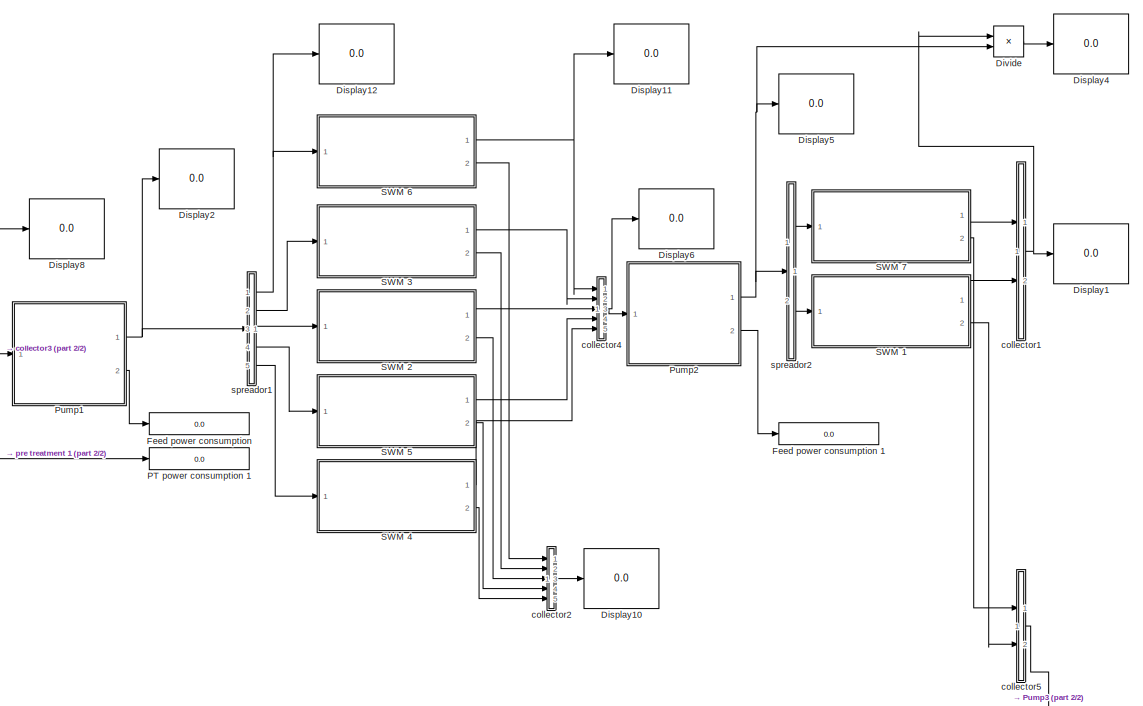
[diagram: root canvas - part 1/2, right side, full height]
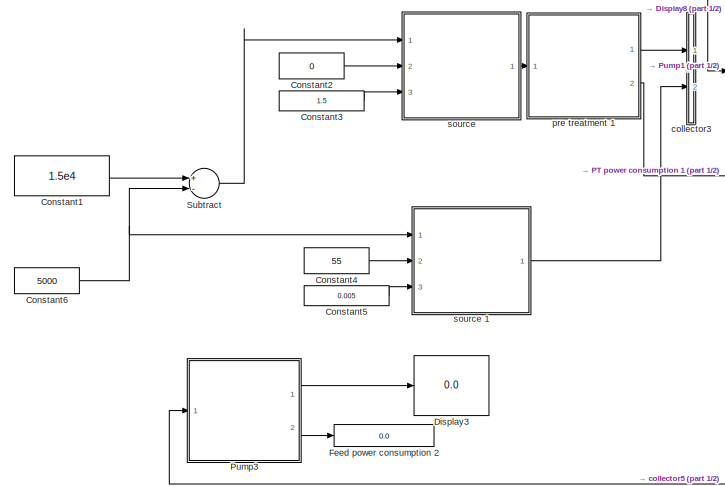
[diagram: root canvas - part 2/2, bottom left region]
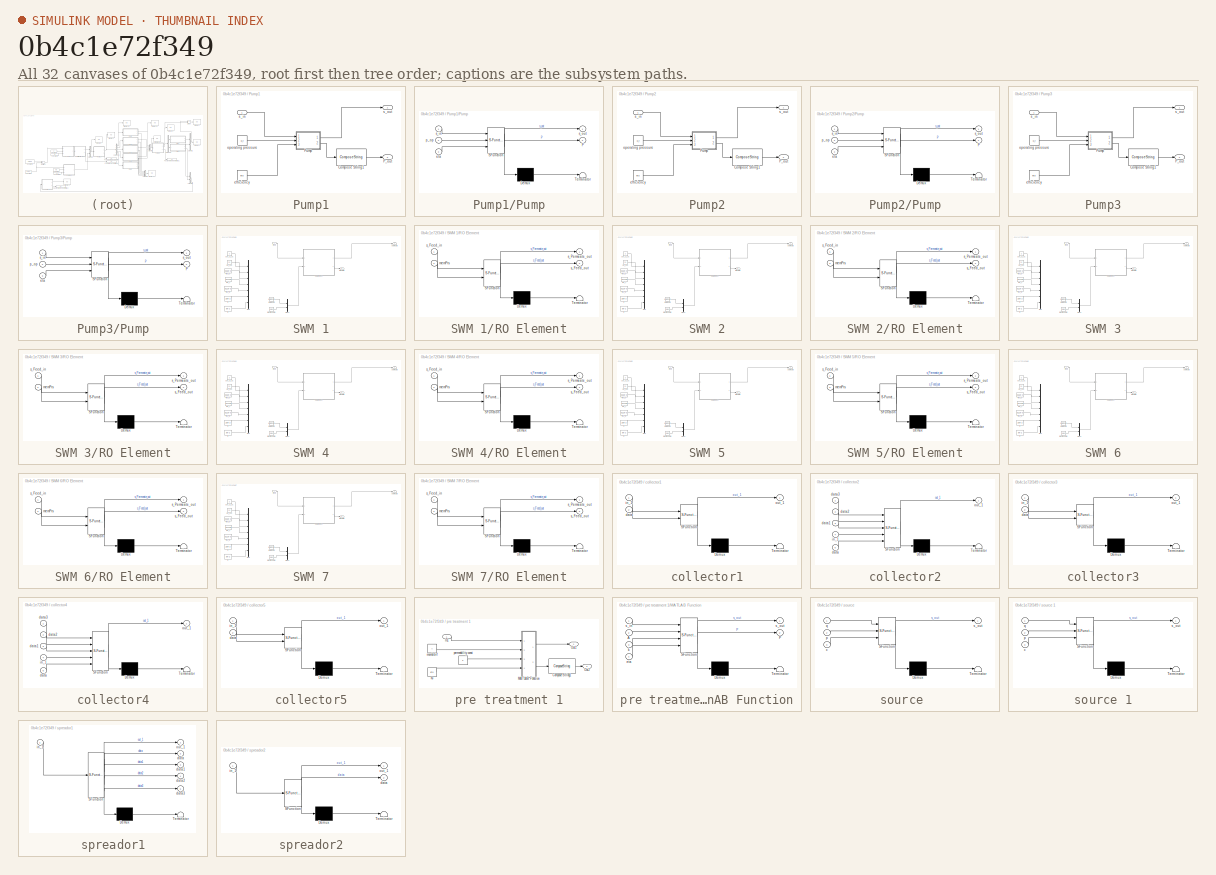
[diagram: thumbnail index - all 32 canvases of the model, root first then tree order]
MODEL slx_0b4c1e72f349
KIND model
CONFIG AbsTol = auto
CONFIG EnableMultiTasking = off
CONFIG FixedStep = auto
CONFIG MaxStep = auto
CONFIG MinStep = auto
CONFIG RelTol = 1e-3
CONFIG SampleTimeConstraint = Unconstrained
CONFIG Solver = VariableStepAuto
CONFIG SolverName = VariableStepAuto
CONFIG StartTime = 0.0
CONFIG StopTime = 10.0
BLOCK [Constant] Constant1
  Value = 1.5e4
BLOCK [Constant] Constant2
  Value = 0
BLOCK [Constant] Constant3
  Value = 1.5
BLOCK [Constant] Constant4
  Value = 55
BLOCK [Constant] Constant5
  Value = 0.005
BLOCK [Constant] Constant6
  Value = 5000
BLOCK [Display] Display1
  Decimation = 1
  Ports = [1]
BLOCK [Display] Display10
  Decimation = 1
  Ports = [1]
BLOCK [Display] Display11
  Decimation = 1
  Ports = [1]
BLOCK [Display] Display12
  Decimation = 1
  Ports = [1]
BLOCK [Display] Display2
  Decimation = 1
  Ports = [1]
BLOCK [Display] Display3
  Decimation = 1
  Ports = [1]
BLOCK [Display] Display4
  Decimation = 1
  Ports = [1]
BLOCK [Display] Display5
  Decimation = 1
  Ports = [1]
BLOCK [Display] Display6
  Decimation = 1
  Ports = [1]
BLOCK [Display] Display8
  Decimation = 1
  Ports = [1]
BLOCK [Product] Divide
  InputSameDT = off
  Inputs = */
  OutDataTypeStr = Inherit: Inherit via internal rule
  Ports = [2, 1]
  RndMeth = Floor
  SaturateOnIntegerOverflow = off
BLOCK [Display] Feed power consumption 
  Decimation = 1
  Ports = [1]
BLOCK [Display] Feed power consumption 1
  Decimation = 1
  Ports = [1]
BLOCK [Display] Feed power consumption 2
  Decimation = 1
  Ports = [1]
BLOCK [Display] PT power consumption 1
  Decimation = 1
  Ports = [1]
BLOCK [SubSystem] Pump1
  Ports = [1, 2]
  RequestExecContextInheritance = off
BLOCK [ComposeString] Pump1/Compose String1
  Format = 'P = %.3f kW'
  Ports = [1, 1]
BLOCK [Outport] Pump1/P_out
  IconDisplay = Port number
  Port = 2
BLOCK [SubSystem] Pump1/Pump
  ErrorFcn = Stateflow.Translate.translate
  PermitHierarchicalResolution = ExplicitOnly
  Ports = [3, 2]
  RequestExecContextInheritance = off
  SFBlockType = MATLAB Function
  TreatAsAtomicUnit = on
BLOCK [Demux] Pump1/Pump/ Demux 
  Outputs = 1
  Ports = [1, 1]
BLOCK [S-Function] Pump1/Pump/ SFunction 
  EnableBusSupport = on
  FunctionName = sf_sfun
  PortCounts = [3 3]
  Ports = [3, 3]
  SFcnIsStateOwnerBlock = off
  SFunctionDeploymentMode = off
  Tag = Stateflow S-Function ps_5_2 3
BLOCK [Terminator] Pump1/Pump/ Terminator 
BLOCK [Outport] Pump1/Pump/P
  IconDisplay = Port number
  Port = 2
BLOCK [Inport] Pump1/Pump/eta
  IconDisplay = Port number
  Port = 3
BLOCK [Inport] Pump1/Pump/p_op
  IconDisplay = Port number
  Port = 2
BLOCK [Inport] Pump1/Pump/s_in
  IconDisplay = Port number
BLOCK [Outport] Pump1/Pump/s_out
  IconDisplay = Port number
BLOCK [Constant] Pump1/efficiency
  Value = eta
BLOCK [Constant] Pump1/operating pressure 
  Value = p_f
BLOCK [Inport] Pump1/s_in 
  IconDisplay = Port number
BLOCK [Outport] Pump1/s_out
  IconDisplay = Port number
BLOCK [SubSystem] Pump2
  Ports = [1, 2]
  RequestExecContextInheritance = off
BLOCK [ComposeString] Pump2/Compose String1
  Format = 'P = %.3f kW'
  Ports = [1, 1]
BLOCK [Outport] Pump2/P_out
  IconDisplay = Port number
  Port = 2
BLOCK [SubSystem] Pump2/Pump
  ErrorFcn = Stateflow.Translate.translate
  PermitHierarchicalResolution = ExplicitOnly
  Ports = [3, 2]
  RequestExecContextInheritance = off
  SFBlockType = MATLAB Function
  TreatAsAtomicUnit = on
BLOCK [Demux] Pump2/Pump/ Demux 
  Outputs = 1
  Ports = [1, 1]
BLOCK [S-Function] Pump2/Pump/ SFunction 
  EnableBusSupport = on
  FunctionName = sf_sfun
  PortCounts = [3 3]
  Ports = [3, 3]
  SFcnIsStateOwnerBlock = off
  SFunctionDeploymentMode = off
  Tag = Stateflow S-Function ps_5_2 2
BLOCK [Terminator] Pump2/Pump/ Terminator 
BLOCK [Outport] Pump2/Pump/P
  IconDisplay = Port number
  Port = 2
BLOCK [Inport] Pump2/Pump/eta
  IconDisplay = Port number
  Port = 3
BLOCK [Inport] Pump2/Pump/p_op
  IconDisplay = Port number
  Port = 2
BLOCK [Inport] Pump2/Pump/s_in
  IconDisplay = Port number
BLOCK [Outport] Pump2/Pump/s_out
  IconDisplay = Port number
BLOCK [Constant] Pump2/efficiency
  Value = eta
BLOCK [Constant] Pump2/operating pressure 
  Value = p_f
BLOCK [Inport] Pump2/s_in 
  IconDisplay = Port number
BLOCK [Outport] Pump2/s_out
  IconDisplay = Port number
BLOCK [SubSystem] Pump3
  Ports = [1, 2]
  RequestExecContextInheritance = off
BLOCK [ComposeString] Pump3/Compose String1
  Format = 'P = %.3f kW'
  Ports = [1, 1]
BLOCK [Outport] Pump3/P_out
  IconDisplay = Port number
  Port = 2
BLOCK [SubSystem] Pump3/Pump
  ErrorFcn = Stateflow.Translate.translate
  PermitHierarchicalResolution = ExplicitOnly
  Ports = [3, 2]
  RequestExecContextInheritance = off
  SFBlockType = MATLAB Function
  TreatAsAtomicUnit = on
BLOCK [Demux] Pump3/Pump/ Demux 
  Outputs = 1
  Ports = [1, 1]
BLOCK [S-Function] Pump3/Pump/ SFunction 
  EnableBusSupport = on
  FunctionName = sf_sfun
  PortCounts = [3 3]
  Ports = [3, 3]
  SFcnIsStateOwnerBlock = off
  SFunctionDeploymentMode = off
  Tag = Stateflow S-Function ps_5_2 7
BLOCK [Terminator] Pump3/Pump/ Terminator 
BLOCK [Outport] Pump3/Pump/P
  IconDisplay = Port number
  Port = 2
BLOCK [Inport] Pump3/Pump/eta
  IconDisplay = Port number
  Port = 3
BLOCK [Inport] Pump3/Pump/p_op
  IconDisplay = Port number
  Port = 2
BLOCK [Inport] Pump3/Pump/s_in
  IconDisplay = Port number
BLOCK [Outport] Pump3/Pump/s_out
  IconDisplay = Port number
BLOCK [Constant] Pump3/efficiency
  Value = eta
BLOCK [Constant] Pump3/operating pressure 
  Value = p_f
BLOCK [Inport] Pump3/s_in 
  IconDisplay = Port number
BLOCK [Outport] Pump3/s_out
  IconDisplay = Port number
BLOCK [SubSystem] SWM 1
  Ports = [1, 2]
  RequestExecContextInheritance = off
BLOCK [Mux] SWM 1/Mux
  Commented = on
  DisplayOption = bar
  Inputs = 7
  Ports = [7, 1]
BLOCK [Mux] SWM 1/Mux1
  DisplayOption = bar
  Inputs = 2
  Ports = [2, 1]
BLOCK [SubSystem] SWM 1/RO Element
  ErrorFcn = Stateflow.Translate.translate
  PermitHierarchicalResolution = ExplicitOnly
  Ports = [2, 2]
  RequestExecContextInheritance = off
  SFBlockType = MATLAB Function
  TreatAsAtomicUnit = on
BLOCK [Demux] SWM 1/RO Element/ Demux 
  Outputs = 1
  Ports = [1, 1]
BLOCK [S-Function] SWM 1/RO Element/ SFunction 
  EnableBusSupport = on
  FunctionName = sf_sfun
  PortCounts = [2 3]
  Ports = [2, 3]
  SFcnIsStateOwnerBlock = off
  SFunctionDeploymentMode = off
  Tag = Stateflow S-Function ps_5_2 1
BLOCK [Terminator] SWM 1/RO Element/ Terminator 
BLOCK [Inport] SWM 1/RO Element/memPrs
  IconDisplay = Port number
  Port = 2
BLOCK [Inport] SWM 1/RO Element/s_Feed_in
  IconDisplay = Port number
BLOCK [Outport] SWM 1/RO Element/s_Feed_out
  IconDisplay = Port number
  Port = 2
BLOCK [Outport] SWM 1/RO Element/s_Permeate_out
  IconDisplay = Port number
BLOCK [Inport] SWM 1/feed
  IconDisplay = Port number
BLOCK [Constant] SWM 1/np_sht
  Commented = on
  Value = 20
BLOCK [Outport] SWM 1/permeate
  IconDisplay = Port number
BLOCK [Constant] SWM 1/r1
  Commented = on
  Value = 2.5e-2
BLOCK [Constant] SWM 1/r2
  Commented = on
  Value = 9e-2
BLOCK [Constant] SWM 1/rejectionRate
  Value = Value
BLOCK [Outport] SWM 1/retentate
  IconDisplay = Port number
  Port = 2
BLOCK [Constant] SWM 1/spc_d_uc
  Commented = on
  Value = 3
BLOCK [Constant] SWM 1/thk_f
  Commented = on
  Value = 0.711e-3
BLOCK [Constant] SWM 1/thk_m
  Commented = on
  Value = 0.11e-3
BLOCK [Constant] SWM 1/thk_p
  Commented = on
  Value = 0.25e-3
BLOCK [Constant] SWM 1/waterPerm
  Value = waterPerm
BLOCK [SubSystem] SWM 2
  Ports = [1, 2]
  RequestExecContextInheritance = off
BLOCK [Mux] SWM 2/Mux
  Commented = on
  DisplayOption = bar
  Inputs = 7
  Ports = [7, 1]
BLOCK [Mux] SWM 2/Mux1
  DisplayOption = bar
  Inputs = 2
  Ports = [2, 1]
BLOCK [SubSystem] SWM 2/RO Element
  ErrorFcn = Stateflow.Translate.translate
  PermitHierarchicalResolution = ExplicitOnly
  Ports = [2, 2]
  RequestExecContextInheritance = off
  SFBlockType = MATLAB Function
  TreatAsAtomicUnit = on
BLOCK [Demux] SWM 2/RO Element/ Demux 
  Outputs = 1
  Ports = [1, 1]
BLOCK [S-Function] SWM 2/RO Element/ SFunction 
  EnableBusSupport = on
  FunctionName = sf_sfun
  PortCounts = [2 3]
  Ports = [2, 3]
  SFcnIsStateOwnerBlock = off
  SFunctionDeploymentMode = off
  Tag = Stateflow S-Function ps_5_2 8
BLOCK [Terminator] SWM 2/RO Element/ Terminator 
BLOCK [Inport] SWM 2/RO Element/memPrs
  IconDisplay = Port number
  Port = 2
BLOCK [Inport] SWM 2/RO Element/s_Feed_in
  IconDisplay = Port number
BLOCK [Outport] SWM 2/RO Element/s_Feed_out
  IconDisplay = Port number
  Port = 2
BLOCK [Outport] SWM 2/RO Element/s_Permeate_out
  IconDisplay = Port number
BLOCK [Inport] SWM 2/feed
  IconDisplay = Port number
BLOCK [Constant] SWM 2/np_sht
  Commented = on
  Value = 20
BLOCK [Outport] SWM 2/permeate
  IconDisplay = Port number
BLOCK [Constant] SWM 2/r1
  Commented = on
  Value = 2.5e-2
BLOCK [Constant] SWM 2/r2
  Commented = on
  Value = 9e-2
BLOCK [Constant] SWM 2/rejectionRate
  Value = Value
BLOCK [Outport] SWM 2/retentate
  IconDisplay = Port number
  Port = 2
BLOCK [Constant] SWM 2/spc_d_uc
  Commented = on
  Value = 3
BLOCK [Constant] SWM 2/thk_f
  Commented = on
  Value = 0.711e-3
BLOCK [Constant] SWM 2/thk_m
  Commented = on
  Value = 0.11e-3
BLOCK [Constant] SWM 2/thk_p
  Commented = on
  Value = 0.25e-3
BLOCK [Constant] SWM 2/waterPerm
  Value = waterPerm
BLOCK [SubSystem] SWM 3
  Ports = [1, 2]
  RequestExecContextInheritance = off
BLOCK [Mux] SWM 3/Mux
  Commented = on
  DisplayOption = bar
  Inputs = 7
  Ports = [7, 1]
BLOCK [Mux] SWM 3/Mux1
  DisplayOption = bar
  Inputs = 2
  Ports = [2, 1]
BLOCK [SubSystem] SWM 3/RO Element
  ErrorFcn = Stateflow.Translate.translate
  PermitHierarchicalResolution = ExplicitOnly
  Ports = [2, 2]
  RequestExecContextInheritance = off
  SFBlockType = MATLAB Function
  TreatAsAtomicUnit = on
BLOCK [Demux] SWM 3/RO Element/ Demux 
  Outputs = 1
  Ports = [1, 1]
BLOCK [S-Function] SWM 3/RO Element/ SFunction 
  EnableBusSupport = on
  FunctionName = sf_sfun
  PortCounts = [2 3]
  Ports = [2, 3]
  SFcnIsStateOwnerBlock = off
  SFunctionDeploymentMode = off
  Tag = Stateflow S-Function ps_5_2 4
BLOCK [Terminator] SWM 3/RO Element/ Terminator 
BLOCK [Inport] SWM 3/RO Element/memPrs
  IconDisplay = Port number
  Port = 2
BLOCK [Inport] SWM 3/RO Element/s_Feed_in
  IconDisplay = Port number
BLOCK [Outport] SWM 3/RO Element/s_Feed_out
  IconDisplay = Port number
  Port = 2
BLOCK [Outport] SWM 3/RO Element/s_Permeate_out
  IconDisplay = Port number
BLOCK [Inport] SWM 3/feed
  IconDisplay = Port number
BLOCK [Constant] SWM 3/np_sht
  Commented = on
  Value = 20
BLOCK [Outport] SWM 3/permeate
  IconDisplay = Port number
BLOCK [Constant] SWM 3/r1
  Commented = on
  Value = 2.5e-2
BLOCK [Constant] SWM 3/r2
  Commented = on
  Value = 9e-2
BLOCK [Constant] SWM 3/rejectionRate
  Value = Value
BLOCK [Outport] SWM 3/retentate
  IconDisplay = Port number
  Port = 2
BLOCK [Constant] SWM 3/spc_d_uc
  Commented = on
  Value = 3
BLOCK [Constant] SWM 3/thk_f
  Commented = on
  Value = 0.711e-3
BLOCK [Constant] SWM 3/thk_m
  Commented = on
  Value = 0.11e-3
BLOCK [Constant] SWM 3/thk_p
  Commented = on
  Value = 0.25e-3
BLOCK [Constant] SWM 3/waterPerm
  Value = waterPerm
BLOCK [SubSystem] SWM 4
  Ports = [1, 2]
  RequestExecContextInheritance = off
BLOCK [Mux] SWM 4/Mux
  Commented = on
  DisplayOption = bar
  Inputs = 7
  Ports = [7, 1]
BLOCK [Mux] SWM 4/Mux1
  DisplayOption = bar
  Inputs = 2
  Ports = [2, 1]
BLOCK [SubSystem] SWM 4/RO Element
  ErrorFcn = Stateflow.Translate.translate
  PermitHierarchicalResolution = ExplicitOnly
  Ports = [2, 2]
  RequestExecContextInheritance = off
  SFBlockType = MATLAB Function
  TreatAsAtomicUnit = on
BLOCK [Demux] SWM 4/RO Element/ Demux 
  Outputs = 1
  Ports = [1, 1]
BLOCK [S-Function] SWM 4/RO Element/ SFunction 
  EnableBusSupport = on
  FunctionName = sf_sfun
  PortCounts = [2 3]
  Ports = [2, 3]
  SFcnIsStateOwnerBlock = off
  SFunctionDeploymentMode = off
  Tag = Stateflow S-Function ps_5_2 10
BLOCK [Terminator] SWM 4/RO Element/ Terminator 
BLOCK [Inport] SWM 4/RO Element/memPrs
  IconDisplay = Port number
  Port = 2
BLOCK [Inport] SWM 4/RO Element/s_Feed_in
  IconDisplay = Port number
BLOCK [Outport] SWM 4/RO Element/s_Feed_out
  IconDisplay = Port number
  Port = 2
BLOCK [Outport] SWM 4/RO Element/s_Permeate_out
  IconDisplay = Port number
BLOCK [Inport] SWM 4/feed
  IconDisplay = Port number
BLOCK [Constant] SWM 4/np_sht
  Commented = on
  Value = 20
BLOCK [Outport] SWM 4/permeate
  IconDisplay = Port number
BLOCK [Constant] SWM 4/r1
  Commented = on
  Value = 2.5e-2
BLOCK [Constant] SWM 4/r2
  Commented = on
  Value = 9e-2
BLOCK [Constant] SWM 4/rejectionRate
  Value = Value
BLOCK [Outport] SWM 4/retentate
  IconDisplay = Port number
  Port = 2
BLOCK [Constant] SWM 4/spc_d_uc
  Commented = on
  Value = 3
BLOCK [Constant] SWM 4/thk_f
  Commented = on
  Value = 0.711e-3
BLOCK [Constant] SWM 4/thk_m
  Commented = on
  Value = 0.11e-3
BLOCK [Constant] SWM 4/thk_p
  Commented = on
  Value = 0.25e-3
BLOCK [Constant] SWM 4/waterPerm
  Value = waterPerm
BLOCK [SubSystem] SWM 5
  Ports = [1, 2]
  RequestExecContextInheritance = off
BLOCK [Mux] SWM 5/Mux
  Commented = on
  DisplayOption = bar
  Inputs = 7
  Ports = [7, 1]
BLOCK [Mux] SWM 5/Mux1
  DisplayOption = bar
  Inputs = 2
  Ports = [2, 1]
BLOCK [SubSystem] SWM 5/RO Element
  ErrorFcn = Stateflow.Translate.translate
  PermitHierarchicalResolution = ExplicitOnly
  Ports = [2, 2]
  RequestExecContextInheritance = off
  SFBlockType = MATLAB Function
  TreatAsAtomicUnit = on
BLOCK [Demux] SWM 5/RO Element/ Demux 
  Outputs = 1
  Ports = [1, 1]
BLOCK [S-Function] SWM 5/RO Element/ SFunction 
  EnableBusSupport = on
  FunctionName = sf_sfun
  PortCounts = [2 3]
  Ports = [2, 3]
  SFcnIsStateOwnerBlock = off
  SFunctionDeploymentMode = off
  Tag = Stateflow S-Function ps_5_2 11
BLOCK [Terminator] SWM 5/RO Element/ Terminator 
BLOCK [Inport] SWM 5/RO Element/memPrs
  IconDisplay = Port number
  Port = 2
BLOCK [Inport] SWM 5/RO Element/s_Feed_in
  IconDisplay = Port number
BLOCK [Outport] SWM 5/RO Element/s_Feed_out
  IconDisplay = Port number
  Port = 2
BLOCK [Outport] SWM 5/RO Element/s_Permeate_out
  IconDisplay = Port number
BLOCK [Inport] SWM 5/feed
  IconDisplay = Port number
BLOCK [Constant] SWM 5/np_sht
  Commented = on
  Value = 20
BLOCK [Outport] SWM 5/permeate
  IconDisplay = Port number
BLOCK [Constant] SWM 5/r1
  Commented = on
  Value = 2.5e-2
BLOCK [Constant] SWM 5/r2
  Commented = on
  Value = 9e-2
BLOCK [Constant] SWM 5/rejectionRate
  Value = Value
BLOCK [Outport] SWM 5/retentate
  IconDisplay = Port number
  Port = 2
BLOCK [Constant] SWM 5/spc_d_uc
  Commented = on
  Value = 3
BLOCK [Constant] SWM 5/thk_f
  Commented = on
  Value = 0.711e-3
BLOCK [Constant] SWM 5/thk_m
  Commented = on
  Value = 0.11e-3
BLOCK [Constant] SWM 5/thk_p
  Commented = on
  Value = 0.25e-3
BLOCK [Constant] SWM 5/waterPerm
  Value = waterPerm
BLOCK [SubSystem] SWM 6
  Ports = [1, 2]
  RequestExecContextInheritance = off
BLOCK [Mux] SWM 6/Mux
  Commented = on
  DisplayOption = bar
  Inputs = 7
  Ports = [7, 1]
BLOCK [Mux] SWM 6/Mux1
  DisplayOption = bar
  Inputs = 2
  Ports = [2, 1]
BLOCK [SubSystem] SWM 6/RO Element
  ErrorFcn = Stateflow.Translate.translate
  PermitHierarchicalResolution = ExplicitOnly
  Ports = [2, 2]
  RequestExecContextInheritance = off
  SFBlockType = MATLAB Function
  TreatAsAtomicUnit = on
BLOCK [Demux] SWM 6/RO Element/ Demux 
  Outputs = 1
  Ports = [1, 1]
BLOCK [S-Function] SWM 6/RO Element/ SFunction 
  EnableBusSupport = on
  FunctionName = sf_sfun
  PortCounts = [2 3]
  Ports = [2, 3]
  SFcnIsStateOwnerBlock = off
  SFunctionDeploymentMode = off
  Tag = Stateflow S-Function ps_5_2 13
BLOCK [Terminator] SWM 6/RO Element/ Terminator 
BLOCK [Inport] SWM 6/RO Element/memPrs
  IconDisplay = Port number
  Port = 2
BLOCK [Inport] SWM 6/RO Element/s_Feed_in
  IconDisplay = Port number
BLOCK [Outport] SWM 6/RO Element/s_Feed_out
  IconDisplay = Port number
  Port = 2
BLOCK [Outport] SWM 6/RO Element/s_Permeate_out
  IconDisplay = Port number
BLOCK [Inport] SWM 6/feed
  IconDisplay = Port number
BLOCK [Constant] SWM 6/np_sht
  Commented = on
  Value = 20
BLOCK [Outport] SWM 6/permeate
  IconDisplay = Port number
BLOCK [Constant] SWM 6/r1
  Commented = on
  Value = 2.5e-2
BLOCK [Constant] SWM 6/r2
  Commented = on
  Value = 9e-2
BLOCK [Constant] SWM 6/rejectionRate
  Value = Value
BLOCK [Outport] SWM 6/retentate
  IconDisplay = Port number
  Port = 2
BLOCK [Constant] SWM 6/spc_d_uc
  Commented = on
  Value = 3
BLOCK [Constant] SWM 6/thk_f
  Commented = on
  Value = 0.711e-3
BLOCK [Constant] SWM 6/thk_m
  Commented = on
  Value = 0.11e-3
BLOCK [Constant] SWM 6/thk_p
  Commented = on
  Value = 0.25e-3
BLOCK [Constant] SWM 6/waterPerm
  Value = waterPerm
BLOCK [SubSystem] SWM 7
  Ports = [1, 2]
  RequestExecContextInheritance = off
BLOCK [Mux] SWM 7/Mux
  Commented = on
  DisplayOption = bar
  Inputs = 7
  Ports = [7, 1]
BLOCK [Mux] SWM 7/Mux1
  DisplayOption = bar
  Inputs = 2
  Ports = [2, 1]
BLOCK [SubSystem] SWM 7/RO Element
  ErrorFcn = Stateflow.Translate.translate
  PermitHierarchicalResolution = ExplicitOnly
  Ports = [2, 2]
  RequestExecContextInheritance = off
  SFBlockType = MATLAB Function
  TreatAsAtomicUnit = on
BLOCK [Demux] SWM 7/RO Element/ Demux 
  Outputs = 1
  Ports = [1, 1]
BLOCK [S-Function] SWM 7/RO Element/ SFunction 
  EnableBusSupport = on
  FunctionName = sf_sfun
  PortCounts = [2 3]
  Ports = [2, 3]
  SFcnIsStateOwnerBlock = off
  SFunctionDeploymentMode = off
  Tag = Stateflow S-Function ps_5_2 12
BLOCK [Terminator] SWM 7/RO Element/ Terminator 
BLOCK [Inport] SWM 7/RO Element/memPrs
  IconDisplay = Port number
  Port = 2
BLOCK [Inport] SWM 7/RO Element/s_Feed_in
  IconDisplay = Port number
BLOCK [Outport] SWM 7/RO Element/s_Feed_out
  IconDisplay = Port number
  Port = 2
BLOCK [Outport] SWM 7/RO Element/s_Permeate_out
  IconDisplay = Port number
BLOCK [Inport] SWM 7/feed
  IconDisplay = Port number
BLOCK [Constant] SWM 7/np_sht
  Commented = on
  Value = 20
BLOCK [Outport] SWM 7/permeate
  IconDisplay = Port number
BLOCK [Constant] SWM 7/r1
  Commented = on
  Value = 2.5e-2
BLOCK [Constant] SWM 7/r2
  Commented = on
  Value = 9e-2
BLOCK [Constant] SWM 7/rejectionRate
  Value = Value
BLOCK [Outport] SWM 7/retentate
  IconDisplay = Port number
  Port = 2
BLOCK [Constant] SWM 7/spc_d_uc
  Commented = on
  Value = 3
BLOCK [Constant] SWM 7/thk_f
  Commented = on
  Value = 0.711e-3
BLOCK [Constant] SWM 7/thk_m
  Commented = on
  Value = 0.11e-3
BLOCK [Constant] SWM 7/thk_p
  Commented = on
  Value = 0.25e-3
BLOCK [Constant] SWM 7/waterPerm
  Value = waterPerm
BLOCK [Sum] Subtract
  InputSameDT = off
  Inputs = +-
  OutDataTypeStr = Inherit: Inherit via internal rule
  Ports = [2, 1]
  SaturateOnIntegerOverflow = off
BLOCK [SubSystem] collector1
  ErrorFcn = Stateflow.Translate.translate
  PermitHierarchicalResolution = ExplicitOnly
  Ports = [2, 1]
  RequestExecContextInheritance = off
  SFBlockType = MATLAB Function
  TreatAsAtomicUnit = on
BLOCK [Demux] collector1/ Demux 
  Outputs = 1
  Ports = [1, 1]
BLOCK [S-Function] collector1/ SFunction 
  EnableBusSupport = on
  FunctionName = sf_sfun
  PortCounts = [2 2]
  Ports = [2, 2]
  SFcnIsStateOwnerBlock = off
  SFunctionDeploymentMode = off
  Tag = Stateflow S-Function ps_5_2 16
BLOCK [Terminator] collector1/ Terminator 
BLOCK [Inport] collector1/data
  IconDisplay = Port number
  Port = 2
BLOCK [Inport] collector1/in_1
  IconDisplay = Port number
BLOCK [Outport] collector1/out_1
  IconDisplay = Port number
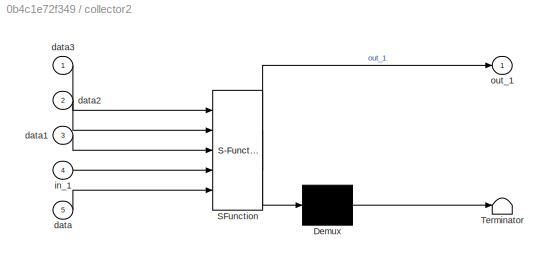
BLOCK [SubSystem] collector2
  ErrorFcn = Stateflow.Translate.translate
  PermitHierarchicalResolution = ExplicitOnly
  Ports = [5, 1]
  RequestExecContextInheritance = off
  SFBlockType = MATLAB Function
  TreatAsAtomicUnit = on
BLOCK [Demux] collector2/ Demux 
  Outputs = 1
  Ports = [1, 1]
BLOCK [S-Function] collector2/ SFunction 
  EnableBusSupport = on
  FunctionName = sf_sfun
  PortCounts = [5 2]
  Ports = [5, 2]
  SFcnIsStateOwnerBlock = off
  SFunctionDeploymentMode = off
  Tag = Stateflow S-Function ps_5_2 14
BLOCK [Terminator] collector2/ Terminator 
BLOCK [Inport] collector2/data
  IconDisplay = Port number
  Port = 5
BLOCK [Inport] collector2/data1
  IconDisplay = Port number
  Port = 3
BLOCK [Inport] collector2/data2
  IconDisplay = Port number
  Port = 2
BLOCK [Inport] collector2/data3
  IconDisplay = Port number
BLOCK [Inport] collector2/in_1
  IconDisplay = Port number
  Port = 4
BLOCK [Outport] collector2/out_1
  IconDisplay = Port number
BLOCK [SubSystem] collector3
  ErrorFcn = Stateflow.Translate.translate
  PermitHierarchicalResolution = ExplicitOnly
  Ports = [2, 1]
  RequestExecContextInheritance = off
  SFBlockType = MATLAB Function
  TreatAsAtomicUnit = on
BLOCK [Demux] collector3/ Demux 
  Outputs = 1
  Ports = [1, 1]
BLOCK [S-Function] collector3/ SFunction 
  EnableBusSupport = on
  FunctionName = sf_sfun
  PortCounts = [2 2]
  Ports = [2, 2]
  SFcnIsStateOwnerBlock = off
  SFunctionDeploymentMode = off
  Tag = Stateflow S-Function ps_5_2 6
BLOCK [Terminator] collector3/ Terminator 
BLOCK [Inport] collector3/data
  IconDisplay = Port number
  Port = 2
BLOCK [Inport] collector3/in_1
  IconDisplay = Port number
BLOCK [Outport] collector3/out_1
  IconDisplay = Port number
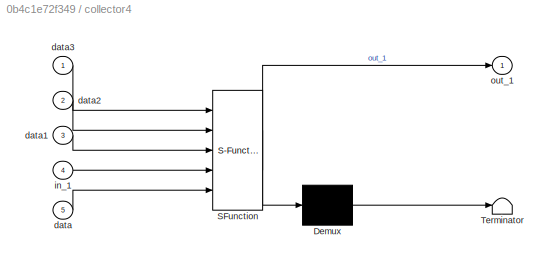
BLOCK [SubSystem] collector4
  ErrorFcn = Stateflow.Translate.translate
  PermitHierarchicalResolution = ExplicitOnly
  Ports = [5, 1]
  RequestExecContextInheritance = off
  SFBlockType = MATLAB Function
  TreatAsAtomicUnit = on
BLOCK [Demux] collector4/ Demux 
  Outputs = 1
  Ports = [1, 1]
BLOCK [S-Function] collector4/ SFunction 
  EnableBusSupport = on
  FunctionName = sf_sfun
  PortCounts = [5 2]
  Ports = [5, 2]
  SFcnIsStateOwnerBlock = off
  SFunctionDeploymentMode = off
  Tag = Stateflow S-Function ps_5_2 15
BLOCK [Terminator] collector4/ Terminator 
BLOCK [Inport] collector4/data
  IconDisplay = Port number
  Port = 5
BLOCK [Inport] collector4/data1
  IconDisplay = Port number
  Port = 3
BLOCK [Inport] collector4/data2
  IconDisplay = Port number
  Port = 2
BLOCK [Inport] collector4/data3
  IconDisplay = Port number
BLOCK [Inport] collector4/in_1
  IconDisplay = Port number
  Port = 4
BLOCK [Outport] collector4/out_1
  IconDisplay = Port number
BLOCK [SubSystem] collector5
  ErrorFcn = Stateflow.Translate.translate
  PermitHierarchicalResolution = ExplicitOnly
  Ports = [2, 1]
  RequestExecContextInheritance = off
  SFBlockType = MATLAB Function
  TreatAsAtomicUnit = on
BLOCK [Demux] collector5/ Demux 
  Outputs = 1
  Ports = [1, 1]
BLOCK [S-Function] collector5/ SFunction 
  EnableBusSupport = on
  FunctionName = sf_sfun
  PortCounts = [2 2]
  Ports = [2, 2]
  SFcnIsStateOwnerBlock = off
  SFunctionDeploymentMode = off
  Tag = Stateflow S-Function ps_5_2 17
BLOCK [Terminator] collector5/ Terminator 
BLOCK [Inport] collector5/data
  IconDisplay = Port number
  Port = 2
BLOCK [Inport] collector5/in_1
  IconDisplay = Port number
BLOCK [Outport] collector5/out_1
  IconDisplay = Port number
BLOCK [SubSystem] pre treatment 1
  Ports = [1, 2]
  RequestExecContextInheritance = off
BLOCK [ComposeString] pre treatment 1/Compose String1
  Format = 'P = %.3f kW'
  Ports = [1, 1]
BLOCK [Inport] pre treatment 1/In1
  IconDisplay = Port number
BLOCK [SubSystem] pre treatment 1/MATLAB Function
  ErrorFcn = Stateflow.Translate.translate
  PermitHierarchicalResolution = ExplicitOnly
  Ports = [4, 2]
  RequestExecContextInheritance = off
  SFBlockType = MATLAB Function
  TreatAsAtomicUnit = on
BLOCK [Demux] pre treatment 1/MATLAB Function/ Demux 
  Outputs = 1
  Ports = [1, 1]
BLOCK [S-Function] pre treatment 1/MATLAB Function/ SFunction 
  EnableBusSupport = on
  FunctionName = sf_sfun
  PortCounts = [4 3]
  Ports = [4, 3]
  SFcnIsStateOwnerBlock = off
  SFunctionDeploymentMode = off
  Tag = Stateflow S-Function ps_5_2 5
BLOCK [Terminator] pre treatment 1/MATLAB Function/ Terminator 
BLOCK [Inport] pre treatment 1/MATLAB Function/A
  IconDisplay = Port number
  Port = 2
BLOCK [Outport] pre treatment 1/MATLAB Function/P
  IconDisplay = Port number
  Port = 2
BLOCK [Inport] pre treatment 1/MATLAB Function/eta
  IconDisplay = Port number
  Port = 4
BLOCK [Inport] pre treatment 1/MATLAB Function/k
  IconDisplay = Port number
  Port = 3
BLOCK [Inport] pre treatment 1/MATLAB Function/s_in
  IconDisplay = Port number
BLOCK [Outport] pre treatment 1/MATLAB Function/s_out
  IconDisplay = Port number
BLOCK [Outport] pre treatment 1/Out1
  IconDisplay = Port number
BLOCK [Outport] pre treatment 1/Out2
  IconDisplay = Port number
  Port = 2
BLOCK [Constant] pre treatment 1/membrSrf
  Value = A
BLOCK [Constant] pre treatment 1/nu
  Value = eta
BLOCK [Constant] pre treatment 1/permeability const
  Value = k
BLOCK [SubSystem] source 
  ErrorFcn = Stateflow.Translate.translate
  PermitHierarchicalResolution = ExplicitOnly
  Ports = [3, 1]
  RequestExecContextInheritance = off
  SFBlockType = MATLAB Function
  TreatAsAtomicUnit = on
BLOCK [Demux] source / Demux 
  Outputs = 1
  Ports = [1, 1]
BLOCK [S-Function] source / SFunction 
  EnableBusSupport = on
  FunctionName = sf_sfun
  PortCounts = [3 2]
  Ports = [3, 2]
  SFcnIsStateOwnerBlock = off
  SFunctionDeploymentMode = off
  Tag = Stateflow S-Function ps_5_2 27
BLOCK [Terminator] source / Terminator 
BLOCK [Inport] source /c
  IconDisplay = Port number
  Port = 3
BLOCK [Inport] source /p
  IconDisplay = Port number
  Port = 2
BLOCK [Inport] source /q
  IconDisplay = Port number
BLOCK [Outport] source /s_out
  IconDisplay = Port number
BLOCK [SubSystem] source 1
  ErrorFcn = Stateflow.Translate.translate
  PermitHierarchicalResolution = ExplicitOnly
  Ports = [3, 1]
  RequestExecContextInheritance = off
  SFBlockType = MATLAB Function
  TreatAsAtomicUnit = on
BLOCK [Demux] source 1/ Demux 
  Outputs = 1
  Ports = [1, 1]
BLOCK [S-Function] source 1/ SFunction 
  EnableBusSupport = on
  FunctionName = sf_sfun
  PortCounts = [3 2]
  Ports = [3, 2]
  SFcnIsStateOwnerBlock = off
  SFunctionDeploymentMode = off
  Tag = Stateflow S-Function ps_5_2 28
BLOCK [Terminator] source 1/ Terminator 
BLOCK [Inport] source 1/c
  IconDisplay = Port number
  Port = 3
BLOCK [Inport] source 1/p
  IconDisplay = Port number
  Port = 2
BLOCK [Inport] source 1/q
  IconDisplay = Port number
BLOCK [Outport] source 1/s_out
  IconDisplay = Port number
BLOCK [SubSystem] spreador1
  ErrorFcn = Stateflow.Translate.translate
  PermitHierarchicalResolution = ExplicitOnly
  Ports = [1, 5]
  RequestExecContextInheritance = off
  SFBlockType = MATLAB Function
  TreatAsAtomicUnit = on
BLOCK [Demux] spreador1/ Demux 
  Outputs = 1
  Ports = [1, 1]
BLOCK [S-Function] spreador1/ SFunction 
  EnableBusSupport = on
  FunctionName = sf_sfun
  PortCounts = [1 6]
  Ports = [1, 6]
  SFcnIsStateOwnerBlock = off
  SFunctionDeploymentMode = off
  Tag = Stateflow S-Function ps_5_2 20
BLOCK [Terminator] spreador1/ Terminator 
BLOCK [Outport] spreador1/data
  IconDisplay = Port number
  Port = 2
BLOCK [Outport] spreador1/data1
  IconDisplay = Port number
  Port = 3
BLOCK [Outport] spreador1/data2
  IconDisplay = Port number
  Port = 4
BLOCK [Outport] spreador1/data3
  IconDisplay = Port number
  Port = 5
BLOCK [Inport] spreador1/in_1
  IconDisplay = Port number
BLOCK [Outport] spreador1/out_1
  IconDisplay = Port number
BLOCK [SubSystem] spreador2
  ErrorFcn = Stateflow.Translate.translate
  PermitHierarchicalResolution = ExplicitOnly
  Ports = [1, 2]
  RequestExecContextInheritance = off
  SFBlockType = MATLAB Function
  TreatAsAtomicUnit = on
BLOCK [Demux] spreador2/ Demux 
  Outputs = 1
  Ports = [1, 1]
BLOCK [S-Function] spreador2/ SFunction 
  EnableBusSupport = on
  FunctionName = sf_sfun
  PortCounts = [1 3]
  Ports = [1, 3]
  SFcnIsStateOwnerBlock = off
  SFunctionDeploymentMode = off
  Tag = Stateflow S-Function ps_5_2 9
BLOCK [Terminator] spreador2/ Terminator 
BLOCK [Outport] spreador2/data
  IconDisplay = Port number
  Port = 2
BLOCK [Inport] spreador2/in_1
  IconDisplay = Port number
BLOCK [Outport] spreador2/out_1
  IconDisplay = Port number
LINE Constant1:1 -> Subtract:1
LINE Constant2:1 -> source :2
LINE Constant3:1 -> source :3
LINE Constant4:1 -> source 1:2
LINE Constant5:1 -> source 1:3
NET Constant6:1 -> Subtract:2, source 1:1
LINE Divide:1 -> Display4:1
LINE Pump1/Compose String1:1 -> Pump1/P_out:1
LINE Pump1/Pump:1 -> Pump1/s_out:1
LINE Pump1/Pump:2 -> Pump1/Compose String1:1
LINE Pump1/efficiency:1 -> Pump1/Pump:3
LINE Pump1/operating pressure :1 -> Pump1/Pump:2
LINE Pump1/s_in :1 -> Pump1/Pump:1
NET Pump1:1 -> Display2:1, spreador1:1
LINE Pump1:2 -> Feed power consumption :1
LINE Pump2/Compose String1:1 -> Pump2/P_out:1
LINE Pump2/Pump:1 -> Pump2/s_out:1
LINE Pump2/Pump:2 -> Pump2/Compose String1:1
LINE Pump2/efficiency:1 -> Pump2/Pump:3
LINE Pump2/operating pressure :1 -> Pump2/Pump:2
LINE Pump2/s_in :1 -> Pump2/Pump:1
NET Pump2:1 -> Display5:1, Divide:2, spreador2:1
LINE Pump2:2 -> Feed power consumption 1:1
LINE Pump3/Compose String1:1 -> Pump3/P_out:1
LINE Pump3/Pump:1 -> Pump3/s_out:1
LINE Pump3/Pump:2 -> Pump3/Compose String1:1
LINE Pump3/efficiency:1 -> Pump3/Pump:3
LINE Pump3/operating pressure :1 -> Pump3/Pump:2
LINE Pump3/s_in :1 -> Pump3/Pump:1
LINE Pump3:1 -> Display3:1
LINE Pump3:2 -> Feed power consumption 2:1
LINE SWM 1/Mux1:1 -> SWM 1/RO Element:2
LINE SWM 1/RO Element:1 -> SWM 1/permeate:1
LINE SWM 1/RO Element:2 -> SWM 1/retentate:1
LINE SWM 1/feed:1 -> SWM 1/RO Element:1
LINE SWM 1/np_sht:1 -> SWM 1/Mux:2
LINE SWM 1/r1:1 -> SWM 1/Mux:6
LINE SWM 1/r2:1 -> SWM 1/Mux:7
LINE SWM 1/rejectionRate:1 -> SWM 1/Mux1:2
LINE SWM 1/spc_d_uc:1 -> SWM 1/Mux:1
LINE SWM 1/thk_f:1 -> SWM 1/Mux:4
LINE SWM 1/thk_m:1 -> SWM 1/Mux:5
LINE SWM 1/thk_p:1 -> SWM 1/Mux:3
LINE SWM 1/waterPerm:1 -> SWM 1/Mux1:1
LINE SWM 1:1 -> collector1:2
LINE SWM 1:2 -> collector5:2
LINE SWM 2/Mux1:1 -> SWM 2/RO Element:2
LINE SWM 2/RO Element:1 -> SWM 2/permeate:1
LINE SWM 2/RO Element:2 -> SWM 2/retentate:1
LINE SWM 2/feed:1 -> SWM 2/RO Element:1
LINE SWM 2/np_sht:1 -> SWM 2/Mux:2
LINE SWM 2/r1:1 -> SWM 2/Mux:6
LINE SWM 2/r2:1 -> SWM 2/Mux:7
LINE SWM 2/rejectionRate:1 -> SWM 2/Mux1:2
LINE SWM 2/spc_d_uc:1 -> SWM 2/Mux:1
LINE SWM 2/thk_f:1 -> SWM 2/Mux:4
LINE SWM 2/thk_m:1 -> SWM 2/Mux:5
LINE SWM 2/thk_p:1 -> SWM 2/Mux:3
LINE SWM 2/waterPerm:1 -> SWM 2/Mux1:1
LINE SWM 2:1 -> collector4:3
LINE SWM 2:2 -> collector2:3
LINE SWM 3/Mux1:1 -> SWM 3/RO Element:2
LINE SWM 3/RO Element:1 -> SWM 3/permeate:1
LINE SWM 3/RO Element:2 -> SWM 3/retentate:1
LINE SWM 3/feed:1 -> SWM 3/RO Element:1
LINE SWM 3/np_sht:1 -> SWM 3/Mux:2
LINE SWM 3/r1:1 -> SWM 3/Mux:6
LINE SWM 3/r2:1 -> SWM 3/Mux:7
LINE SWM 3/rejectionRate:1 -> SWM 3/Mux1:2
LINE SWM 3/spc_d_uc:1 -> SWM 3/Mux:1
LINE SWM 3/thk_f:1 -> SWM 3/Mux:4
LINE SWM 3/thk_m:1 -> SWM 3/Mux:5
LINE SWM 3/thk_p:1 -> SWM 3/Mux:3
LINE SWM 3/waterPerm:1 -> SWM 3/Mux1:1
LINE SWM 3:1 -> collector4:2
LINE SWM 3:2 -> collector2:2
LINE SWM 4/Mux1:1 -> SWM 4/RO Element:2
LINE SWM 4/RO Element:1 -> SWM 4/permeate:1
LINE SWM 4/RO Element:2 -> SWM 4/retentate:1
LINE SWM 4/feed:1 -> SWM 4/RO Element:1
LINE SWM 4/np_sht:1 -> SWM 4/Mux:2
LINE SWM 4/r1:1 -> SWM 4/Mux:6
LINE SWM 4/r2:1 -> SWM 4/Mux:7
LINE SWM 4/rejectionRate:1 -> SWM 4/Mux1:2
LINE SWM 4/spc_d_uc:1 -> SWM 4/Mux:1
LINE SWM 4/thk_f:1 -> SWM 4/Mux:4
LINE SWM 4/thk_m:1 -> SWM 4/Mux:5
LINE SWM 4/thk_p:1 -> SWM 4/Mux:3
LINE SWM 4/waterPerm:1 -> SWM 4/Mux1:1
LINE SWM 4:1 -> collector4:5
LINE SWM 4:2 -> collector2:5
LINE SWM 5/Mux1:1 -> SWM 5/RO Element:2
LINE SWM 5/RO Element:1 -> SWM 5/permeate:1
LINE SWM 5/RO Element:2 -> SWM 5/retentate:1
LINE SWM 5/feed:1 -> SWM 5/RO Element:1
LINE SWM 5/np_sht:1 -> SWM 5/Mux:2
LINE SWM 5/r1:1 -> SWM 5/Mux:6
LINE SWM 5/r2:1 -> SWM 5/Mux:7
LINE SWM 5/rejectionRate:1 -> SWM 5/Mux1:2
LINE SWM 5/spc_d_uc:1 -> SWM 5/Mux:1
LINE SWM 5/thk_f:1 -> SWM 5/Mux:4
LINE SWM 5/thk_m:1 -> SWM 5/Mux:5
LINE SWM 5/thk_p:1 -> SWM 5/Mux:3
LINE SWM 5/waterPerm:1 -> SWM 5/Mux1:1
LINE SWM 5:1 -> collector4:4
LINE SWM 5:2 -> collector2:4
LINE SWM 6/Mux1:1 -> SWM 6/RO Element:2
LINE SWM 6/RO Element:1 -> SWM 6/permeate:1
LINE SWM 6/RO Element:2 -> SWM 6/retentate:1
LINE SWM 6/feed:1 -> SWM 6/RO Element:1
LINE SWM 6/np_sht:1 -> SWM 6/Mux:2
LINE SWM 6/r1:1 -> SWM 6/Mux:6
LINE SWM 6/r2:1 -> SWM 6/Mux:7
LINE SWM 6/rejectionRate:1 -> SWM 6/Mux1:2
LINE SWM 6/spc_d_uc:1 -> SWM 6/Mux:1
LINE SWM 6/thk_f:1 -> SWM 6/Mux:4
LINE SWM 6/thk_m:1 -> SWM 6/Mux:5
LINE SWM 6/thk_p:1 -> SWM 6/Mux:3
LINE SWM 6/waterPerm:1 -> SWM 6/Mux1:1
NET SWM 6:1 -> Display11:1, collector4:1
LINE SWM 6:2 -> collector2:1
LINE SWM 7/Mux1:1 -> SWM 7/RO Element:2
LINE SWM 7/RO Element:1 -> SWM 7/permeate:1
LINE SWM 7/RO Element:2 -> SWM 7/retentate:1
LINE SWM 7/feed:1 -> SWM 7/RO Element:1
LINE SWM 7/np_sht:1 -> SWM 7/Mux:2
LINE SWM 7/r1:1 -> SWM 7/Mux:6
LINE SWM 7/r2:1 -> SWM 7/Mux:7
LINE SWM 7/rejectionRate:1 -> SWM 7/Mux1:2
LINE SWM 7/spc_d_uc:1 -> SWM 7/Mux:1
LINE SWM 7/thk_f:1 -> SWM 7/Mux:4
LINE SWM 7/thk_m:1 -> SWM 7/Mux:5
LINE SWM 7/thk_p:1 -> SWM 7/Mux:3
LINE SWM 7/waterPerm:1 -> SWM 7/Mux1:1
LINE SWM 7:1 -> collector1:1
LINE SWM 7:2 -> collector5:1
LINE Subtract:1 -> source :1
NET collector1:1 -> Display1:1, Divide:1
LINE collector2:1 -> Display10:1
NET collector3:1 -> Display8:1, Pump1:1
NET collector4:1 -> Display6:1, Pump2:1
LINE collector5:1 -> Pump3:1
LINE pre treatment 1/Compose String1:1 -> pre treatment 1/Out2:1
LINE pre treatment 1/In1:1 -> pre treatment 1/MATLAB Function:1
LINE pre treatment 1/MATLAB Function:1 -> pre treatment 1/Out1:1
LINE pre treatment 1/MATLAB Function:2 -> pre treatment 1/Compose String1:1
LINE pre treatment 1/membrSrf:1 -> pre treatment 1/MATLAB Function:2
LINE pre treatment 1/nu:1 -> pre treatment 1/MATLAB Function:4
LINE pre treatment 1/permeability const:1 -> pre treatment 1/MATLAB Function:3
LINE pre treatment 1:1 -> collector3:1
LINE pre treatment 1:2 -> PT power consumption 1:1
LINE source 1:1 -> collector3:2
LINE source :1 -> pre treatment 1:1
NET spreador1:1 -> Display12:1, SWM 6:1
LINE spreador1:2 -> SWM 3:1
LINE spreador1:3 -> SWM 2:1
LINE spreador1:4 -> SWM 5:1
LINE spreador1:5 -> SWM 4:1
LINE spreador2:1 -> SWM 7:1
LINE spreador2:2 -> SWM 1:1
note: NET lines group one-source signal fan-out (src -> all destinations, sorted); 1:1 wires keep LINE
CHART SWM 1/RO Element states=1 transitions=1
  STATE_LABEL 'eML_blk_kernel()'
  STATE_LABEL 'SCRIPT:\nfunction [s_Permeate_out, s_Feed_out] = fcn(s_Feed_in, memPrs)\n\n% moduleParas = [d_uc, no_sht, thk_d, thk_f, thk_m, r1, r2]\n\nr_fl    = 2.5e-4;\nh_ch    = 7.11e-4;\nl_f     = 2.822e-3;\neps     = 1.0 - (3.14*r_fl^2*2.0)/(l_f*h_ch);\n\n% ---------------------------------fixing flow rate:\nnbSheets = 20;\nl_s     = 1.1;\nl_l     = 0.93;\n\nq_in    = s_Feed_in(1)/3.6*1e-6;        %m^3/s\nU       = q_in/(...<+2296ch>'  <repeated x7 — deduplicated; at blocks: RO Element>
CHART Pump2/Pump states=1 transitions=1
  STATE_LABEL 'eML_blk_kernel()'
  STATE_LABEL 'SCRIPT:\nfunction [s_out,P ] = fcn(s_in, p_op, eta)\nq = s_in(1);\ndp = p_op - s_in(2);\nP = q*dp/eta/3.6e4;     % power consumption in kW\ns_out = [q,p_op,s_in(3)];\n\n'
CHART Pump1/Pump states=1 transitions=1
  STATE_LABEL 'eML_blk_kernel()'
  STATE_LABEL 'SCRIPT:\nfunction [s_out,P ] = fcn(s_in, p_op, eta)\nq = s_in(1);\ndp = p_op - s_in(2);\nP = q*dp/eta/3.6e4;     % power consumption in kW\ns_out = [q,p_op,s_in(3)];\n\n'
CHART SWM 3/RO Element states=1 transitions=1
  STATE_LABEL 'eML_blk_kernel()'
CHART pre treatment
1/MATLAB Function states=1 transitions=1
  STATE_LABEL 'eML_blk_kernel()'
  STATE_LABEL 'SCRIPT:\nfunction [s_out,P ] = pt(s_in, A, k, eta)\nq = s_in(1)*1e-6/3.6; % m^3/s\ndp = q/(k/(8.64e9)*A);  % Pa\nP = q*dp*1e-3/eta;     % power consumption in kW\ns_out = s_in;'
CHART collector3 states=1 transitions=1
  STATE_LABEL 'eML_blk_kernel()'
  STATE_LABEL 'SCRIPT:\nfunction out_1  = fork(in_1, data)\n% reducing all input streams to one stream\n\nswitch nargin\n    case 1\n        sInAr = in_1;\n    case 2\n        sInAr = [data; in_1];\n    case 3\n        sInAr = [data; data1; in_1];\n    case 4\n        sInAr = [data; data1; data2; in_1];\n    case 5\n        sInAr = [data; data1; data2; data3; in_1];\n    case 6\n        sInAr = [data; data1; data2; data3; data4...<+720ch>'  <repeated x3 — deduplicated; at blocks: collector3, collector1, collector5>
CHART Pump3/Pump states=1 transitions=1
  STATE_LABEL 'eML_blk_kernel()'
  STATE_LABEL 'SCRIPT:\nfunction [s_out,P ] = fcn(s_in, p_op, eta)\nq = s_in(1);\ndp = p_op - s_in(2);\nP = q*dp/eta/3.6e4;     % power consumption in kW\ns_out = [q,p_op,s_in(3)];\n\n'
CHART SWM 2/RO Element states=1 transitions=1
  STATE_LABEL 'eML_blk_kernel()'
CHART spreador2 states=1 transitions=1
  STATE_LABEL 'eML_blk_kernel()'
  STATE_LABEL 'SCRIPT:\nfunction [out_1, data] = fork(in_1)\n% spreading one input stream to several output streams\n\nswitch nargout\n    case 1\n        out_1 = in_1;\n    case 2\n        out_1 = [in_1(1)/nargout, in_1(2), in_1(3)];\n        data  = out_1;\n    case 3\n        out_1 = [in_1(1)/nargout, in_1(2), in_1(3)];\n        data  = out_1;\n        data1  = out_1;\n    case 4\n        out_1 = [in_1(1)/nargout, in_1(2), ...<+1451ch>'
CHART SWM 4/RO Element states=1 transitions=1
  STATE_LABEL 'eML_blk_kernel()'
CHART SWM 5/RO Element states=1 transitions=1
  STATE_LABEL 'eML_blk_kernel()'
CHART SWM 7/RO Element states=1 transitions=1
  STATE_LABEL 'eML_blk_kernel()'
CHART SWM 6/RO Element states=1 transitions=1
  STATE_LABEL 'eML_blk_kernel()'
CHART collector2 states=1 transitions=1
  STATE_LABEL 'eML_blk_kernel()'
  STATE_LABEL 'SCRIPT:\nfunction out_1  = fork(data3, data2, data1, in_1, data)\n% reducing all input streams to one stream\n\nswitch nargin\n    case 1\n        sInAr = in_1;\n    case 2\n        sInAr = [data; in_1];\n    case 3\n        sInAr = [data; data1; in_1];\n    case 4\n        sInAr = [data; data1; data2; in_1];\n    case 5\n        sInAr = [data; data1; data2; data3; in_1];\n    case 6\n        sInAr = [data; data1...<+684ch>'
CHART collector4 states=1 transitions=1
  STATE_LABEL 'eML_blk_kernel()'
  STATE_LABEL 'SCRIPT:\nfunction out_1  = fork(data3, data2, data1, in_1, data)\n% reducing all input streams to one stream\n\nswitch nargin\n    case 1\n        sInAr = in_1;\n    case 2\n        sInAr = [data; in_1];\n    case 3\n        sInAr = [data; data1; in_1];\n    case 4\n        sInAr = [data; data1; data2; in_1];\n    case 5\n        sInAr = [data; data1; data2; data3; in_1];\n    case 6\n        sInAr = [data; data1...<+684ch>'
CHART collector1 states=1 transitions=1
  STATE_LABEL 'eML_blk_kernel()'
CHART collector5 states=1 transitions=1
  STATE_LABEL 'eML_blk_kernel()'
CHART spreador1 states=1 transitions=1
  STATE_LABEL 'eML_blk_kernel()'
  STATE_LABEL 'SCRIPT:\nfunction [out_1, data, data1, data2, data3] = fork(in_1)\n% spreading one input stream to several output streams\n\nswitch nargout\n    case 1\n        out_1 = in_1;\n    case 2\n        out_1 = [in_1(1)/nargout, in_1(2), in_1(3)];\n        data  = out_1;\n    case 3\n        out_1 = [in_1(1)/nargout, in_1(2), in_1(3)];\n        data  = out_1;\n        data1  = out_1;\n    case 4\n        out_1 = [in_1(...<+1472ch>'
CHART source
 states=1 transitions=1
  STATE_LABEL 'eML_blk_kernel()'
  STATE_LABEL 'SCRIPT:\nfunction s_out = fcn(q,p,c)\ns_out = [q,p,c];'
CHART source
1 states=1 transitions=1
  STATE_LABEL 'eML_blk_kernel()'
  STATE_LABEL 'SCRIPT:\nfunction s_out = fcn(q,p,c)\ns_out = [q,p,c];'
